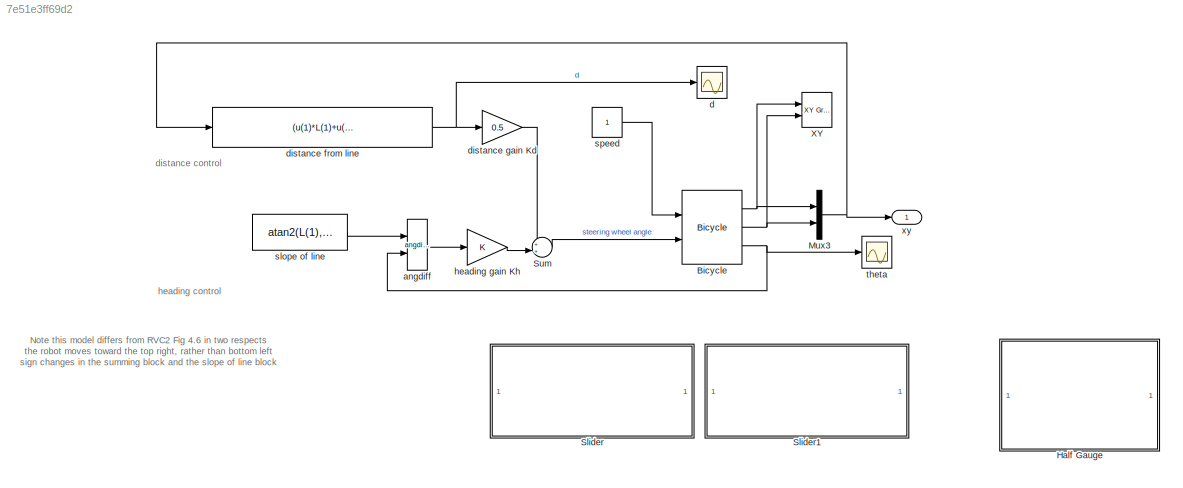
MODEL slx_7e51e3ff69d2
KIND model
CONFIG AbsTol = auto
CONFIG FixedStep = auto
CONFIG InitFcn = if ~exist('x0')\n  x0 = [5 5 0];\n  msgbox(sprintf('x0 not defined in workspace, setting it to [%g %g %g]\n', x0));\nend\nif ~exist('L')\n  L = [1 -2 4];\n  msgbox(sprintf('L not defined in workspace, setting it to [%g %g %g]\n', L));\nend\n% clean up old vehicle icons\nset(0, 'ShowHiddenHandles', 'on')\ndelete(findobj('Tag', 'vehicle'))\nset(0, 'ShowHiddenHandles', 'off')
CONFIG MaxStep = auto
CONFIG MinStep = auto
CONFIG RelTol = 1e-3
CONFIG SampleTimeConstraint = Unconstrained
CONFIG Solver = ode45
CONFIG SolverMode = Auto
CONFIG SolverName = ode45
CONFIG StartTime = 0.0
CONFIG StopFcn = % update the XY scope\nset(0, 'ShowHiddenHandles', 'on')\nfig = findobj('name', 'XY');\nax = findobj(fig, 'type', 'axes');\naxes(ax)\ngrid on\nhold on\nplot_vehicle(x0, 'r', 'Tag', 'vehicle')\nplot_homline(L, 'r--', 'Tag', 'vehicle')\nhold off\nset(0, 'ShowHiddenHandles', 'off')
CONFIG StopTime = 15.0
BLOCK [Reference] Bicycle  REF=roblocks/Vehicles/Bicycle  (lib defined in mdl_2a292b13c81b, mdl_69400f8cfe22, +12 more)
  L = 1
  Ports = [2, 3]
  SourceBlock = roblocks/Vehicles/Bicycle
  accel = 1
  alim = 1
  steer_rate = Inf
  vlim = 1
  x0 = x0
BLOCK [SubSystem] Half Gauge
  DialogController = hmiCreateDDGDialog
  IsWebBlock = on
  Ports = []
  RequestExecContextInheritance = off
BLOCK [Mux] Mux3
  DisplayOption = bar
  Inputs = 2
  Ports = [2, 1]
BLOCK [SubSystem] Slider
  Description = Replaced Block
  Ports = []
  RequestExecContextInheritance = off
BLOCK [SubSystem] Slider1
  Description = Replaced Block
  Ports = []
  RequestExecContextInheritance = off
BLOCK [Sum] Sum
  IconShape = round
  InputSameDT = off
  Inputs = ++|
  OutDataTypeStr = Inherit: Inherit via internal rule
  Ports = [2, 1]
  SaturateOnIntegerOverflow = off
BLOCK [Reference] XY  REF=simulink/Sinks/XY Graph
  Ports = [2]
  SourceBlock = simulink/Sinks/XY Graph
  SourceType = XY scope.
  st = -1
  xmax = 10
  xmin = -10
  ymax = 10
  ymin = -10
BLOCK [Reference] angdiff  REF=roblocks/Toolbox/angdiff  (lib defined in mdl_2a292b13c81b, mdl_69400f8cfe22, +12 more)
  Ports = [2, 1]
  SourceBlock = roblocks/Toolbox/angdiff
BLOCK [Scope] d
  DataFormat = StructureWithTime
  Decimation = 1
  Floating = off
  Grid = on
  LimitDataPoints = off
  MaxDataPoints = 5000
  NumInputPorts = 1
  Ports = [1]
  SampleInput = off
  SampleTime = -1
  SaveName = ScopeData1
  SaveToWorkspace = off
  ShowLegends = off
  TickLabels = OneTimeTick
  TimeRange = auto
  YMax = 0.65016
  YMin = -4.54438
  ZoomMode = on
BLOCK [Fcn] distance from line
  Expr = (u(1)*L(1)+u(2)*L(2)+L(3))/sqrt(L(1)^2+L(2)^2)
BLOCK [Gain] distance gain Kd
  Gain = 0.5
  OutDataTypeStr = Inherit: Inherit via internal rule
  ParamDataTypeStr = Inherit: Inherit via internal rule
  SaturateOnIntegerOverflow = off
BLOCK [Gain] heading gain Kh
  OutDataTypeStr = Inherit: Inherit via internal rule
  ParamDataTypeStr = Inherit: Inherit via internal rule
  SaturateOnIntegerOverflow = off
BLOCK [Constant] slope of line
  Value = atan2(L(1),-L(2))
BLOCK [Constant] speed
  SampleTime = 0.02
  VectorParams1D = off
BLOCK [Scope] theta
  DataFormat = StructureWithTime
  Decimation = 1
  Floating = off
  Grid = on
  LimitDataPoints = off
  MaxDataPoints = 5000
  NumInputPorts = 1
  Ports = [1]
  SampleInput = off
  SampleTime = -1
  SaveName = ScopeData
  SaveToWorkspace = off
  ShowLegends = off
  TickLabels = OneTimeTick
  TimeRange = auto
  YMax = 0.68802
  YMin = -1.13424
  ZoomMode = on
BLOCK [Outport] xy
  IconDisplay = Port number
ANNOTATION (root): Note this model differs from RVC2 Fig 4.6 in two respects the robot moves toward the top right, rather than bottom left sign changes in the summing block and the slope of line block
ANNOTATION (root): distance control
ANNOTATION (root): heading control
NET Bicycle:1 -> Mux3:1, XY:1
NET Bicycle:2 -> Mux3:2, XY:2
NET Bicycle:3 -> angdiff:2, theta:1
NET Mux3:1 -> distance from line:1, xy:1
LINE Sum:1 -> Bicycle:2
LINE angdiff:1 -> heading gain Kh:1
NET distance from line:1 -> d:1, distance gain Kd:1
LINE distance gain Kd:1 -> Sum:1
LINE heading gain Kh:1 -> Sum:2
LINE slope of line:1 -> angdiff:1
LINE speed:1 -> Bicycle:1
note: NET lines group one-source signal fan-out (src -> all destinations, sorted); 1:1 wires keep LINE
